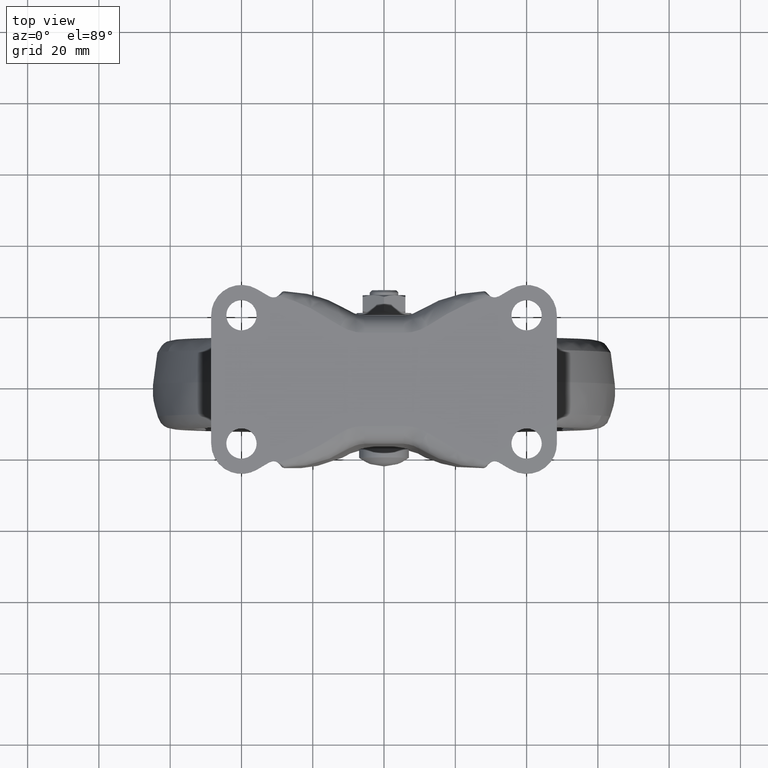
[diagram: clean part render]
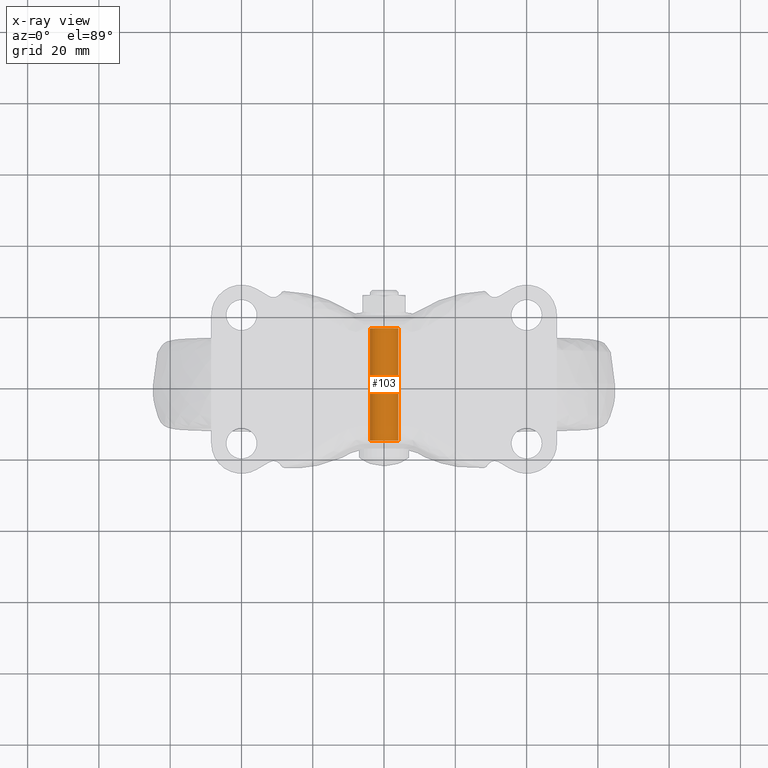
[diagram: x-ray — body ghosted, one internal face saturated and labeled with its STEP entity id]
A machine part, top view, then the same camera in x-ray: the body is ghosted and one INTERNAL B-rep face — a face not visible from any outside direction — is saturated and labeled: STEP entity #103.
In plain terms, the highlighted face is a freeform B-spline surface patch.
Its self-contained STEP definition (entity closure, byte-faithful):
#5=CARTESIAN_POINT('',(3.992539193687467,16.537500000000001,-85.244194158139422));
#6=CARTESIAN_POINT('',(4.236733351826894,16.537499999999998,-81.251654964451959));
#7=CARTESIAN_POINT('',(0.244194158139428,16.537500000000001,-81.007460806312537));
#8=CARTESIAN_POINT('',(-3.748345035548039,16.537499999999998,-80.763266648173115));
#9=CARTESIAN_POINT('',(-3.992539193687467,16.537500000000001,-84.755805841860578));
#10=CARTESIAN_POINT('',(3.992539193687467,-16.557187500000008,-85.244194158139422));
#11=CARTESIAN_POINT('',(4.236733351826894,-16.557187500000001,-81.251654964451959));
#12=CARTESIAN_POINT('',(0.244194158139428,-16.557187500000008,-81.007460806312537));
#13=CARTESIAN_POINT('',(-3.748345035548039,-16.557187500000001,-80.763266648173115));
#14=CARTESIAN_POINT('',(-3.992539193687467,-16.557187500000008,-84.755805841860578));
#22=(BOUNDED_SURFACE()B_SPLINE_SURFACE(2,1,((#5,#10),(#6,#11),(#7,#12),(#8,#13),(#9,#14)),.UNSPECIFIED.,.F.,.F.,.U.)B_SPLINE_SURFACE_WITH_KNOTS((3,2,3),(2,2),(0.0,6.627416997969509,13.254833995939020),(0.0,33.094687500000013),.UNSPECIFIED.)GEOMETRIC_REPRESENTATION_ITEM()RATIONAL_B_SPLINE_SURFACE(((1.0,1.0),(0.707106781186548,0.707106781186548),(1.0,1.0),(0.707106781186548,0.707106781186548),(1.0,1.0)))REPRESENTATION_ITEM('')SURFACE());
#23=CARTESIAN_POINT('',(3.992539193650808,15.750000000000000,-85.244194158738793));
#24=VERTEX_POINT('',#23);
#25=CARTESIAN_POINT('',(0.0,15.750000000000000,-81.0));
#26=VERTEX_POINT('',#25);
#27=CARTESIAN_POINT('',(3.992539193650809,15.749999999999998,-85.244194158738807));
#28=CARTESIAN_POINT('',(4.0,15.749999999999996,-85.122211053494880));
#29=CARTESIAN_POINT('',(4.0,15.750000000000000,-85.0));
#30=CARTESIAN_POINT('',(4.000000000000000,15.750000000000009,-81.0));
#31=CARTESIAN_POINT('',(0.0,15.750000000000000,-81.0));
#39=(BOUNDED_CURVE()B_SPLINE_CURVE(2,(#27,#28,#29,#30,#31),.UNSPECIFIED.,.F.,.U.)B_SPLINE_CURVE_WITH_KNOTS((3,2,3),(0.239332962216065,0.250000000000000,0.500000000000000),.UNSPECIFIED.)CURVE()GEOMETRIC_REPRESENTATION_ITEM()RATIONAL_B_SPLINE_CURVE((0.976072041617686,0.987502787873034,1.0,0.707106781186548,1.0))REPRESENTATION_ITEM(''));
#40=EDGE_CURVE('',#24,#26,#39,.T.);
#41=ORIENTED_EDGE('',*,*,#40,.F.);
#42=CARTESIAN_POINT('',(3.992539193650808,-15.750000000000000,-85.244194158738793));
#43=VERTEX_POINT('',#42);
#44=CARTESIAN_POINT('',(3.992539193650808,15.750000000000000,-85.244194158738793));
#45=CARTESIAN_POINT('',(3.992539193650808,-15.750000000000000,-85.244194158738793));
#46=QUASI_UNIFORM_CURVE('',1,(#44,#45),.UNSPECIFIED.,.F.,.U.);
#47=EDGE_CURVE('',#24,#43,#46,.T.);
#48=ORIENTED_EDGE('',*,*,#47,.T.);
#49=CARTESIAN_POINT('',(0.0,-15.750000000000000,-81.0));
#50=VERTEX_POINT('',#49);
#51=CARTESIAN_POINT('',(3.992539193650809,-15.749999999999996,-85.244194158738793));
#52=CARTESIAN_POINT('',(4.0,-15.750000000000002,-85.122211053494880));
#53=CARTESIAN_POINT('',(4.0,-15.750000000000000,-85.0));
#54=CARTESIAN_POINT('',(4.000000000000000,-15.750000000000009,-81.0));
#55=CARTESIAN_POINT('',(0.0,-15.750000000000000,-81.0));
#63=(BOUNDED_CURVE()B_SPLINE_CURVE(2,(#51,#52,#53,#54,#55),.UNSPECIFIED.,.F.,.U.)B_SPLINE_CURVE_WITH_KNOTS((3,2,3),(0.239332962216066,0.250000000000000,0.500000000000000),.UNSPECIFIED.)CURVE()GEOMETRIC_REPRESENTATION_ITEM()RATIONAL_B_SPLINE_CURVE((0.976072041617687,0.987502787873035,1.0,0.707106781186548,1.0))REPRESENTATION_ITEM(''));
#64=EDGE_CURVE('',#43,#50,#63,.T.);
#65=ORIENTED_EDGE('',*,*,#64,.T.);
#66=CARTESIAN_POINT('',(-3.992539193650808,-15.750000000000000,-84.755805841261207));
#67=VERTEX_POINT('',#66);
#68=CARTESIAN_POINT('',(0.0,-15.750000000000000,-81.0));
#69=CARTESIAN_POINT('',(-3.762824267056837,-15.749999999999993,-80.999999999999986));
#70=CARTESIAN_POINT('',(-3.992539193650809,-15.750000000000005,-84.755805841261207));
#78=(BOUNDED_CURVE()B_SPLINE_CURVE(2,(#68,#69,#70),.UNSPECIFIED.,.F.,.U.)B_SPLINE_CURVE_WITH_KNOTS((3,3),(0.500000000000000,0.739332962216065),.UNSPECIFIED.)CURVE()GEOMETRIC_REPRESENTATION_ITEM()RATIONAL_B_SPLINE_CURVE((1.0,0.719603993313513,0.976072041617686))REPRESENTATION_ITEM(''));
#79=EDGE_CURVE('',#50,#67,#78,.T.);
#80=ORIENTED_EDGE('',*,*,#79,.T.);
#81=CARTESIAN_POINT('',(-3.992539193650809,15.750000000000000,-84.755805841261207));
#82=VERTEX_POINT('',#81);
#83=CARTESIAN_POINT('',(-3.992539193650809,15.750000000000000,-84.755805841261207));
#84=CARTESIAN_POINT('',(-3.992539193650808,-15.750000000000000,-84.755805841261207));
#85=QUASI_UNIFORM_CURVE('',1,(#83,#84),.UNSPECIFIED.,.F.,.U.);
#86=EDGE_CURVE('',#82,#67,#85,.T.);
#87=ORIENTED_EDGE('',*,*,#86,.F.);
#88=CARTESIAN_POINT('',(0.0,15.750000000000000,-81.0));
#89=CARTESIAN_POINT('',(-3.762824267056837,15.749999999999993,-80.999999999999986));
#90=CARTESIAN_POINT('',(-3.992539193650809,15.750000000000005,-84.755805841261207));
#98=(BOUNDED_CURVE()B_SPLINE_CURVE(2,(#88,#89,#90),.UNSPECIFIED.,.F.,.U.)B_SPLINE_CURVE_WITH_KNOTS((3,3),(0.500000000000000,0.739332962216065),.UNSPECIFIED.)CURVE()GEOMETRIC_REPRESENTATION_ITEM()RATIONAL_B_SPLINE_CURVE((1.0,0.719603993313513,0.976072041617686))REPRESENTATION_ITEM(''));
#99=EDGE_CURVE('',#26,#82,#98,.T.);
#100=ORIENTED_EDGE('',*,*,#99,.F.);
#101=EDGE_LOOP('',(#41,#48,#65,#80,#87,#100));
#102=FACE_OUTER_BOUND('',#101,.T.);
#103=ADVANCED_FACE('',(#102),#22,.F.);